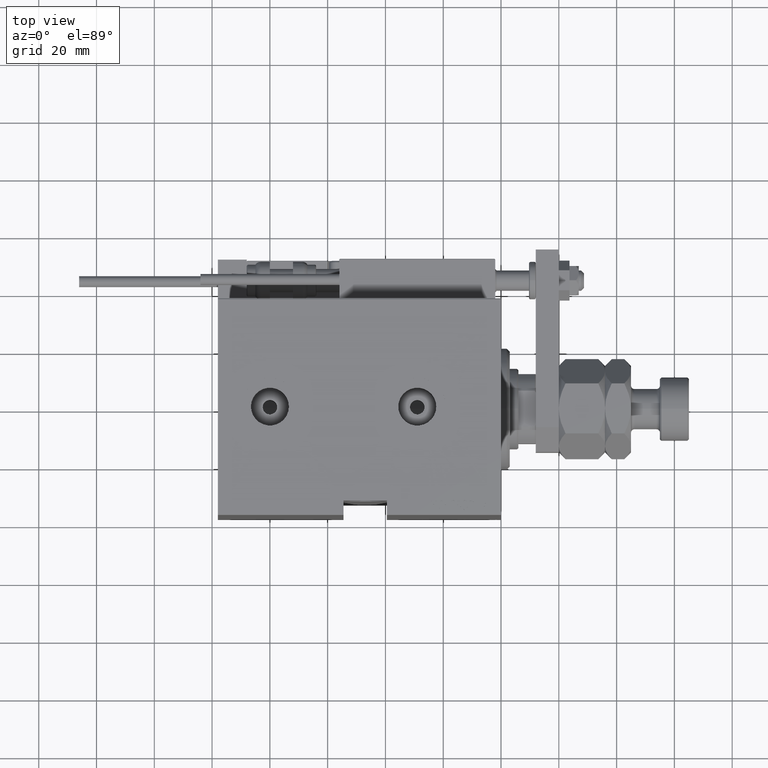
[diagram: clean part render]
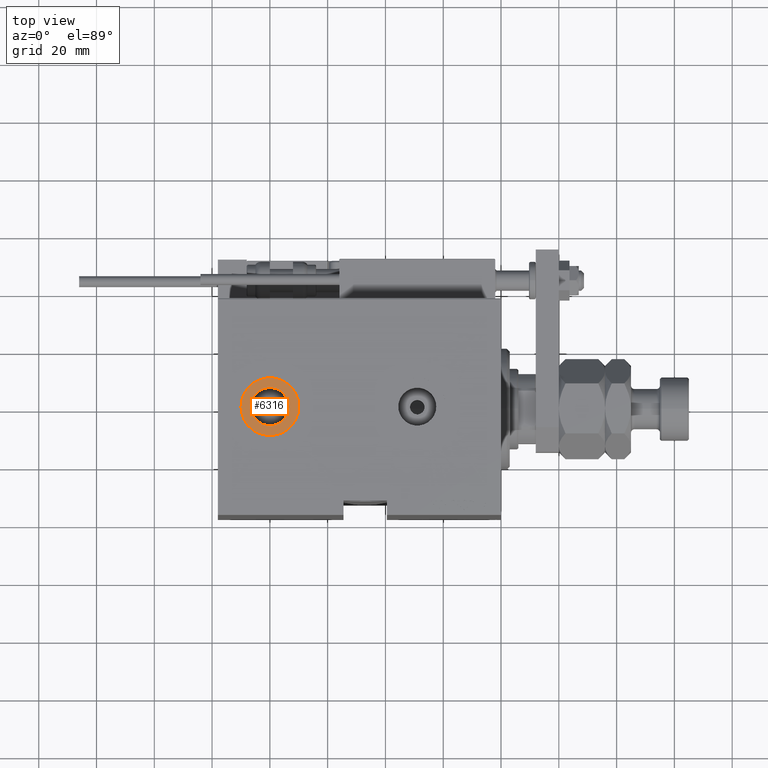
[diagram: same view with one face highlighted and labeled with its STEP entity id]
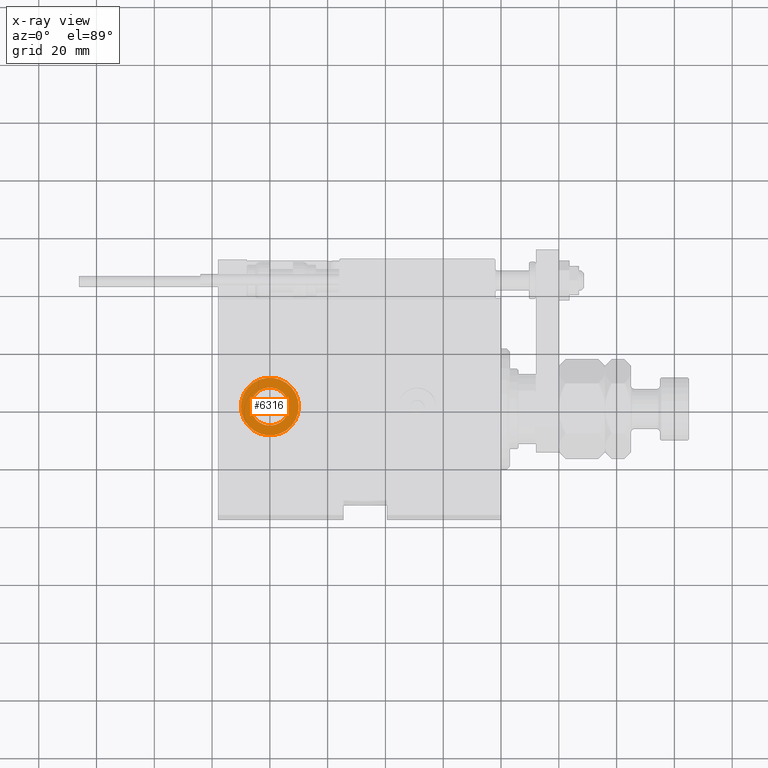
[diagram: x-ray of the same camera — body ghosted, the highlighted face saturated]
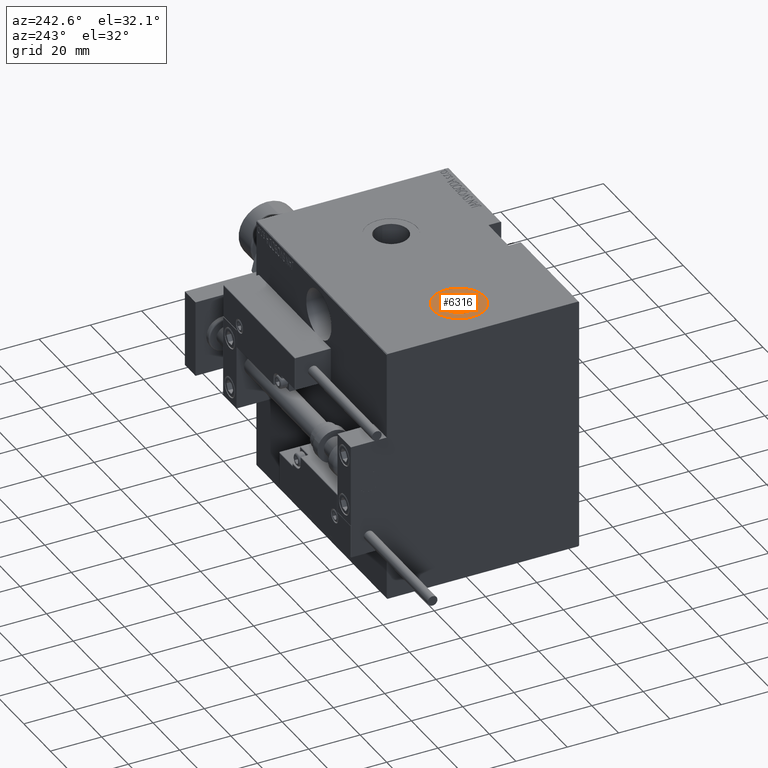
[diagram: same view with one face highlighted and labeled with its STEP entity id]
A machine part, top view. The second image highlights one B-rep face of the part: STEP entity #6316.
The next image is the same camera in x-ray: the body ghosted, the highlighted face saturated — about 0% of this face is hidden behind the body in this view.
A second angle (auxiliary view) of the same face is appended — the face is thin or edge-on in the first view.
In plain terms, the highlighted planar face has unit normal (0, 0, 1).
Its self-contained STEP definition (entity closure, byte-faithful):
#103 = EDGE_LOOP ( 'NONE', ( #22092, #19126 ) ) ;
#494 = DIRECTION ( 'NONE',  ( 0.000000000000000000, 0.000000000000000000, 1.000000000000000000 ) ) ;
#2155 = CARTESIAN_POINT ( 'NONE',  ( 73.42000000000001592, -8.446040944704016336E-15, 49.90000000000000568 ) ) ;
#2276 = CARTESIAN_POINT ( 'NONE',  ( 86.58000000000001251, -9.251858538542975377E-15, 49.90000000000000568 ) ) ;
#2866 = CIRCLE ( 'NONE', #31831, 6.580000000000002736 ) ;
#3949 = AXIS2_PLACEMENT_3D ( 'NONE', #41597, #29352, #34110 ) ;
#3961 = VERTEX_POINT ( 'NONE', #2155 ) ;
#6316 = ADVANCED_FACE ( 'NONE', ( #30951, #10418 ), #11233, .T. ) ;
#6555 = DIRECTION ( 'NONE',  ( 0.000000000000000000, 0.000000000000000000, 1.000000000000000000 ) ) ;
#7090 = CARTESIAN_POINT ( 'NONE',  ( 80.00000000000001421, -9.251858538542975377E-15, 49.90000000000000568 ) ) ;
#8134 = EDGE_CURVE ( 'NONE', #8303, #3961, #24095, .T. ) ;
#8303 = VERTEX_POINT ( 'NONE', #2276 ) ;
#10418 = FACE_OUTER_BOUND ( 'NONE', #51601, .T. ) ;
#11233 = PLANE ( 'NONE',  #25724 ) ;
#14718 = DIRECTION ( 'NONE',  ( 0.000000000000000000, 0.000000000000000000, 1.000000000000000000 ) ) ;
#15980 = CARTESIAN_POINT ( 'NONE',  ( 80.00000000000001421, -9.251858538542975377E-15, 49.90000000000000568 ) ) ;
#17248 = ORIENTED_EDGE ( 'NONE', *, *, #18715, .T. ) ;
#18670 = AXIS2_PLACEMENT_3D ( 'NONE', #15980, #494, #32244 ) ;
#18715 = EDGE_CURVE ( 'NONE', #31193, #35993, #46751, .T. ) ;
#19126 = ORIENTED_EDGE ( 'NONE', *, *, #46834, .F. ) ;
#21001 = ORIENTED_EDGE ( 'NONE', *, *, #23442, .T. ) ;
#22092 = ORIENTED_EDGE ( 'NONE', *, *, #8134, .F. ) ;
#22209 = CARTESIAN_POINT ( 'NONE',  ( 90.00000000000001421, -9.251858538542975377E-15, 49.90000000000000568 ) ) ;
#22395 = AXIS2_PLACEMENT_3D ( 'NONE', #7090, #6555, #47345 ) ;
#23243 = DIRECTION ( 'NONE',  ( 1.000000000000000000, 0.000000000000000000, 0.000000000000000000 ) ) ;
#23442 = EDGE_CURVE ( 'NONE', #35993, #31193, #43110, .T. ) ;
#23778 = CARTESIAN_POINT ( 'NONE',  ( 80.00000000000001421, -9.251858538542975377E-15, 49.90000000000000568 ) ) ;
#24095 = CIRCLE ( 'NONE', #22395, 6.580000000000002736 ) ;
#25724 = AXIS2_PLACEMENT_3D ( 'NONE', #26691, #51746, #43751 ) ;
#26691 = CARTESIAN_POINT ( 'NONE',  ( 80.00000000000001421, -9.251858538542975377E-15, 49.90000000000000568 ) ) ;
#27741 = CARTESIAN_POINT ( 'NONE',  ( 70.00000000000001421, -8.027211739395623896E-15, 49.90000000000000568 ) ) ;
#29352 = DIRECTION ( 'NONE',  ( 0.000000000000000000, 0.000000000000000000, 1.000000000000000000 ) ) ;
#30951 = FACE_BOUND ( 'NONE', #103, .T. ) ;
#31193 = VERTEX_POINT ( 'NONE', #22209 ) ;
#31831 = AXIS2_PLACEMENT_3D ( 'NONE', #23778, #14718, #23243 ) ;
#32244 = DIRECTION ( 'NONE',  ( 1.000000000000000000, 0.000000000000000000, 0.000000000000000000 ) ) ;
#34110 = DIRECTION ( 'NONE',  ( 1.000000000000000000, 0.000000000000000000, 0.000000000000000000 ) ) ;
#35993 = VERTEX_POINT ( 'NONE', #27741 ) ;
#41597 = CARTESIAN_POINT ( 'NONE',  ( 80.00000000000001421, -9.251858538542975377E-15, 49.90000000000000568 ) ) ;
#43110 = CIRCLE ( 'NONE', #3949, 9.999999999999994671 ) ;
#43751 = DIRECTION ( 'NONE',  ( 1.000000000000000000, 0.000000000000000000, -0.000000000000000000 ) ) ;
#46751 = CIRCLE ( 'NONE', #18670, 9.999999999999994671 ) ;
#46834 = EDGE_CURVE ( 'NONE', #3961, #8303, #2866, .T. ) ;
#47345 = DIRECTION ( 'NONE',  ( 1.000000000000000000, 0.000000000000000000, 0.000000000000000000 ) ) ;
#51601 = EDGE_LOOP ( 'NONE', ( #17248, #21001 ) ) ;
#51746 = DIRECTION ( 'NONE',  ( 0.000000000000000000, 0.000000000000000000, 1.000000000000000000 ) ) ;